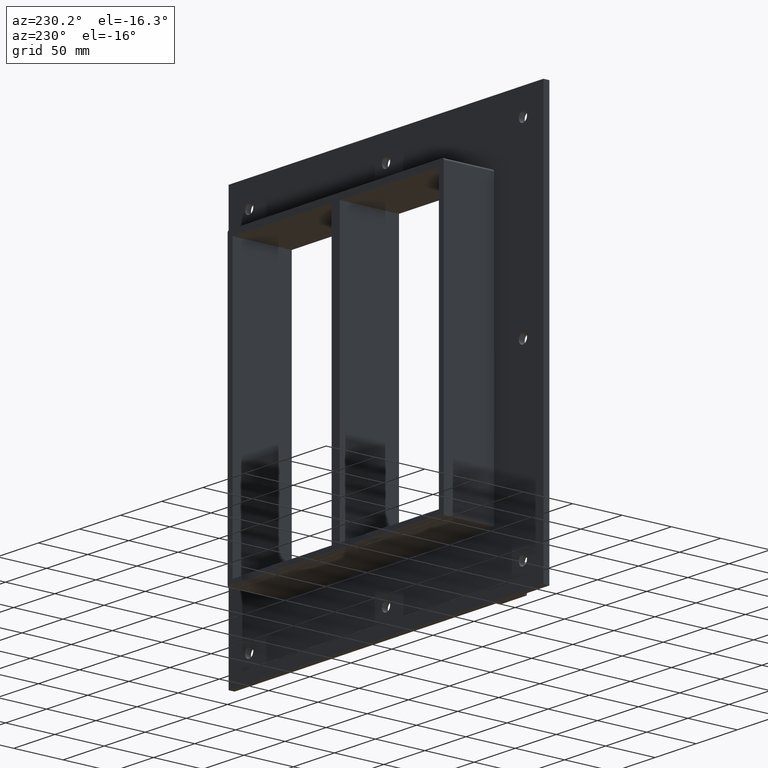
[diagram: clean part render]
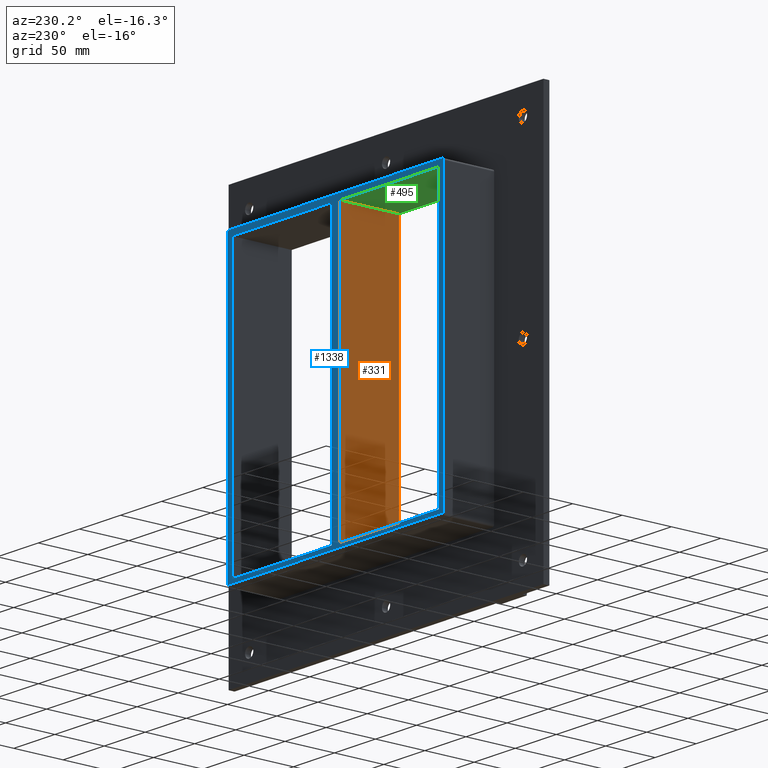
[diagram: same view with three faces highlighted in distinct colors, each labeled with its STEP entity id]
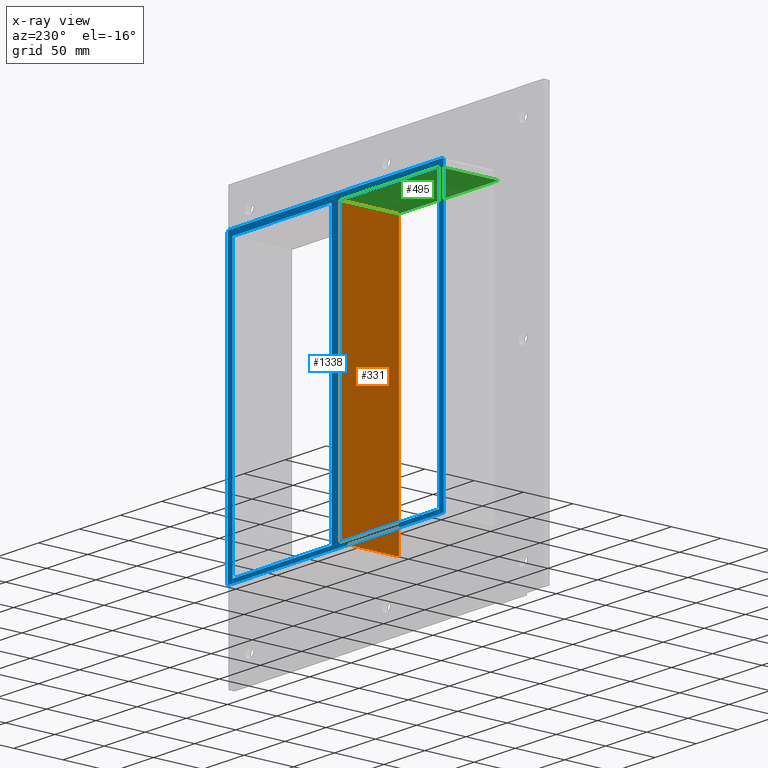
[diagram: x-ray of the same camera — body ghosted, the three highlighted faces saturated]
A machine part, auxiliary view with three faces highlighted in distinct colors.
The next image is the same camera in x-ray (body ghosted, the three faces saturated) — at least one of them is partly hidden behind the body in this view.
Their STEP definitions:

[orange] entity #331 — the highlighted planar face has unit normal (-1, 0, 0).
#292=CARTESIAN_POINT('',(-5.000000000000355,-3.0,-139.0));
#293=DIRECTION('',(-1.0,0.0,0.0));
#294=DIRECTION('',(0.0,0.0,1.0));
#295=AXIS2_PLACEMENT_3D('',#292,#293,#294);
#296=PLANE('',#295);
#297=CARTESIAN_POINT('',(-5.000000000000355,-3.0,-139.0));
#298=VERTEX_POINT('',#297);
#299=CARTESIAN_POINT('',(-5.000000000000409,-3.0,139.0));
#300=VERTEX_POINT('',#299);
#301=CARTESIAN_POINT('',(-5.000000000000355,-3.0,-139.0));
#302=DIRECTION('',(0.0,0.0,1.0));
#303=VECTOR('',#302,278.0);
#304=LINE('',#301,#303);
#305=EDGE_CURVE('',#298,#300,#304,.T.);
#306=ORIENTED_EDGE('',*,*,#305,.T.);
#307=CARTESIAN_POINT('',(-5.000000000000409,57.0,139.0));
#308=VERTEX_POINT('',#307);
#309=CARTESIAN_POINT('',(-5.000000000000409,57.000000000000007,139.0));
#310=DIRECTION('',(0.0,-1.0,0.0));
#311=VECTOR('',#310,60.000000000000007);
#312=LINE('',#309,#311);
#313=EDGE_CURVE('',#308,#300,#312,.T.);
#314=ORIENTED_EDGE('',*,*,#313,.F.);
#315=CARTESIAN_POINT('',(-5.000000000000355,57.0,-139.0));
#316=VERTEX_POINT('',#315);
#317=CARTESIAN_POINT('',(-5.000000000000355,57.0,-139.0));
#318=DIRECTION('',(0.0,0.0,1.0));
#319=VECTOR('',#318,278.0);
#320=LINE('',#317,#319);
#321=EDGE_CURVE('',#316,#308,#320,.T.);
#322=ORIENTED_EDGE('',*,*,#321,.F.);
#323=CARTESIAN_POINT('',(-5.000000000000355,-3.0,-139.0));
#324=DIRECTION('',(0.0,1.0,0.0));
#325=VECTOR('',#324,60.000000000000007);
#326=LINE('',#323,#325);
#327=EDGE_CURVE('',#298,#316,#326,.T.);
#328=ORIENTED_EDGE('',*,*,#327,.F.);
#329=EDGE_LOOP('',(#306,#314,#322,#328));
#330=FACE_OUTER_BOUND('',#329,.T.);
#331=ADVANCED_FACE('',(#330),#296,.T.);

[blue] entity #1338 — the highlighted planar face has unit normal (0, 1, 0).
#307=CARTESIAN_POINT('',(-5.000000000000409,57.0,139.0));
#308=VERTEX_POINT('',#307);
#315=CARTESIAN_POINT('',(-5.000000000000355,57.0,-139.0));
#316=VERTEX_POINT('',#315);
#317=CARTESIAN_POINT('',(-5.000000000000355,57.0,-139.0));
#318=DIRECTION('',(0.0,0.0,1.0));
#319=VECTOR('',#318,278.0);
#320=LINE('',#317,#319);
#321=EDGE_CURVE('',#316,#308,#320,.T.);
#347=CARTESIAN_POINT('',(5.0,57.0,-138.99999999998164));
#348=VERTEX_POINT('',#347);
#355=CARTESIAN_POINT('',(5.0,57.0,139.0));
#356=VERTEX_POINT('',#355);
#357=CARTESIAN_POINT('',(5.0,57.0,139.0));
#358=DIRECTION('',(0.0,0.0,-1.0));
#359=VECTOR('',#358,277.99999999998164);
#360=LINE('',#357,#359);
#361=EDGE_CURVE('',#356,#348,#360,.T.);
#378=CARTESIAN_POINT('',(-125.5,57.0,-139.0));
#379=VERTEX_POINT('',#378);
#380=CARTESIAN_POINT('',(-125.50000000000001,57.0,-139.0));
#381=DIRECTION('',(1.0,0.0,0.0));
#382=VECTOR('',#381,120.49999999999966);
#383=LINE('',#380,#382);
#384=EDGE_CURVE('',#379,#316,#383,.T.);
#417=CARTESIAN_POINT('',(125.50000000000004,57.0,-139.0));
#418=VERTEX_POINT('',#417);
#425=CARTESIAN_POINT('',(5.0,57.0,-139.0));
#426=DIRECTION('',(1.0,0.0,0.0));
#427=VECTOR('',#426,120.50000000000004);
#428=LINE('',#425,#427);
#429=EDGE_CURVE('',#348,#418,#428,.T.);
#440=CARTESIAN_POINT('',(125.50000000000004,57.0,139.0));
#441=VERTEX_POINT('',#440);
#442=CARTESIAN_POINT('',(125.50000000000004,57.0,139.0));
#443=DIRECTION('',(-1.0,0.0,0.0));
#444=VECTOR('',#443,120.50000000000004);
#445=LINE('',#442,#444);
#446=EDGE_CURVE('',#441,#356,#445,.T.);
#479=CARTESIAN_POINT('',(-125.5,57.0,139.0));
#480=VERTEX_POINT('',#479);
#487=CARTESIAN_POINT('',(-5.000000000000412,57.0,139.0));
#488=DIRECTION('',(-1.0,0.0,0.0));
#489=VECTOR('',#488,120.49999999999959);
#490=LINE('',#487,#489);
#491=EDGE_CURVE('',#308,#480,#490,.T.);
#838=CARTESIAN_POINT('',(-125.5,57.0,138.99999999999997));
#839=DIRECTION('',(0.0,0.0,-1.0));
#840=VECTOR('',#839,278.0);
#841=LINE('',#838,#840);
#842=EDGE_CURVE('',#480,#379,#841,.T.);
#948=CARTESIAN_POINT('',(131.5,57.0,-143.0));
#949=VERTEX_POINT('',#948);
#1021=CARTESIAN_POINT('',(-131.50000000000003,57.0,-143.0));
#1022=VERTEX_POINT('',#1021);
#1095=CARTESIAN_POINT('',(-131.50000000000003,57.0,143.0));
#1096=VERTEX_POINT('',#1095);
#1103=CARTESIAN_POINT('',(-131.50000000000003,57.0,-143.0));
#1104=DIRECTION('',(0.0,0.0,1.0));
#1105=VECTOR('',#1104,286.0);
#1106=LINE('',#1103,#1105);
#1107=EDGE_CURVE('',#1022,#1096,#1106,.T.);
#1160=CARTESIAN_POINT('',(-131.5,57.0,-143.0));
#1161=DIRECTION('',(1.0,0.0,0.0));
#1162=VECTOR('',#1161,263.0);
#1163=LINE('',#1160,#1162);
#1164=EDGE_CURVE('',#1022,#949,#1163,.T.);
#1178=CARTESIAN_POINT('',(-129.50000000000003,57.0,145.0));
#1179=VERTEX_POINT('',#1178);
#1186=CARTESIAN_POINT('',(-129.50000000000003,57.0,143.0));
#1187=DIRECTION('',(0.0,-1.0,0.0));
#1188=DIRECTION('',(-0.707106781186548,0.0,0.707106781186548));
#1189=AXIS2_PLACEMENT_3D('',#1186,#1187,#1188);
#1190=CIRCLE('',#1189,2.0);
#1191=EDGE_CURVE('',#1179,#1096,#1190,.T.);
#1203=CARTESIAN_POINT('',(129.5,57.0,145.0));
#1204=VERTEX_POINT('',#1203);
#1211=CARTESIAN_POINT('',(-129.50000000000003,57.0,145.0));
#1212=DIRECTION('',(1.0,0.0,0.0));
#1213=VECTOR('',#1212,259.0);
#1214=LINE('',#1211,#1213);
#1215=EDGE_CURVE('',#1179,#1204,#1214,.T.);
#1260=CARTESIAN_POINT('',(131.5,57.0,143.0));
#1261=VERTEX_POINT('',#1260);
#1268=CARTESIAN_POINT('',(129.5,57.0,143.0));
#1269=DIRECTION('',(0.0,-1.0,0.0));
#1270=DIRECTION('',(0.707106781186548,0.0,0.707106781186548));
#1271=AXIS2_PLACEMENT_3D('',#1268,#1269,#1270);
#1272=CIRCLE('',#1271,2.0);
#1273=EDGE_CURVE('',#1261,#1204,#1272,.T.);
#1286=CARTESIAN_POINT('',(131.5,57.0,143.0));
#1287=DIRECTION('',(0.0,0.0,-1.0));
#1288=VECTOR('',#1287,286.0);
#1289=LINE('',#1286,#1288);
#1290=EDGE_CURVE('',#1261,#949,#1289,.T.);
#1304=CARTESIAN_POINT('',(125.50000000000004,57.0,-138.99999999999997));
#1305=DIRECTION('',(0.0,0.0,1.0));
#1306=VECTOR('',#1305,278.0);
#1307=LINE('',#1304,#1306);
#1308=EDGE_CURVE('',#418,#441,#1307,.T.);
#1313=CARTESIAN_POINT('',(-1.578805E-014,57.0,0.0));
#1314=DIRECTION('',(0.0,1.0,0.0));
#1315=DIRECTION('',(0.0,0.0,1.0));
#1316=AXIS2_PLACEMENT_3D('',#1313,#1314,#1315);
#1317=PLANE('',#1316);
#1318=ORIENTED_EDGE('',*,*,#1164,.F.);
#1319=ORIENTED_EDGE('',*,*,#1107,.T.);
#1320=ORIENTED_EDGE('',*,*,#1191,.F.);
#1321=ORIENTED_EDGE('',*,*,#1215,.T.);
#1322=ORIENTED_EDGE('',*,*,#1273,.F.);
#1323=ORIENTED_EDGE('',*,*,#1290,.T.);
#1324=EDGE_LOOP('',(#1318,#1319,#1320,#1321,#1322,#1323));
#1325=FACE_OUTER_BOUND('',#1324,.T.);
#1326=ORIENTED_EDGE('',*,*,#429,.T.);
#1327=ORIENTED_EDGE('',*,*,#1308,.T.);
#1328=ORIENTED_EDGE('',*,*,#446,.T.);
#1329=ORIENTED_EDGE('',*,*,#361,.T.);
#1330=EDGE_LOOP('',(#1326,#1327,#1328,#1329));
#1331=FACE_BOUND('',#1330,.T.);
#1332=ORIENTED_EDGE('',*,*,#321,.T.);
#1333=ORIENTED_EDGE('',*,*,#491,.T.);
#1334=ORIENTED_EDGE('',*,*,#842,.T.);
#1335=ORIENTED_EDGE('',*,*,#384,.T.);
#1336=EDGE_LOOP('',(#1332,#1333,#1334,#1335));
#1337=FACE_BOUND('',#1336,.T.);
#1338=ADVANCED_FACE('',(#1325,#1331,#1337),#1317,.T.);

[green] entity #495 — the highlighted planar face has unit normal (0, 0, 1).
#299=CARTESIAN_POINT('',(-5.000000000000409,-3.0,139.0));
#300=VERTEX_POINT('',#299);
#307=CARTESIAN_POINT('',(-5.000000000000409,57.0,139.0));
#308=VERTEX_POINT('',#307);
#309=CARTESIAN_POINT('',(-5.000000000000409,57.000000000000007,139.0));
#310=DIRECTION('',(0.0,-1.0,0.0));
#311=VECTOR('',#310,60.000000000000007);
#312=LINE('',#309,#311);
#313=EDGE_CURVE('',#308,#300,#312,.T.);
#465=CARTESIAN_POINT('',(-125.5,0.0,139.0));
#466=DIRECTION('',(0.0,0.0,1.0));
#467=DIRECTION('',(1.0,0.0,0.0));
#468=AXIS2_PLACEMENT_3D('',#465,#466,#467);
#469=PLANE('',#468);
#470=ORIENTED_EDGE('',*,*,#313,.T.);
#471=CARTESIAN_POINT('',(-125.5,-3.0,139.0));
#472=VERTEX_POINT('',#471);
#473=CARTESIAN_POINT('',(-125.5,-3.0,139.0));
#474=DIRECTION('',(1.0,0.0,0.0));
#475=VECTOR('',#474,120.49999999999959);
#476=LINE('',#473,#475);
#477=EDGE_CURVE('',#472,#300,#476,.T.);
#478=ORIENTED_EDGE('',*,*,#477,.F.);
#479=CARTESIAN_POINT('',(-125.5,57.0,139.0));
#480=VERTEX_POINT('',#479);
#481=CARTESIAN_POINT('',(-125.5,-3.0,139.0));
#482=DIRECTION('',(0.0,1.0,0.0));
#483=VECTOR('',#482,60.0);
#484=LINE('',#481,#483);
#485=EDGE_CURVE('',#472,#480,#484,.T.);
#486=ORIENTED_EDGE('',*,*,#485,.T.);
#487=CARTESIAN_POINT('',(-5.000000000000412,57.0,139.0));
#488=DIRECTION('',(-1.0,0.0,0.0));
#489=VECTOR('',#488,120.49999999999959);
#490=LINE('',#487,#489);
#491=EDGE_CURVE('',#308,#480,#490,.T.);
#492=ORIENTED_EDGE('',*,*,#491,.F.);
#493=EDGE_LOOP('',(#470,#478,#486,#492));
#494=FACE_OUTER_BOUND('',#493,.T.);
#495=ADVANCED_FACE('',(#494),#469,.F.);